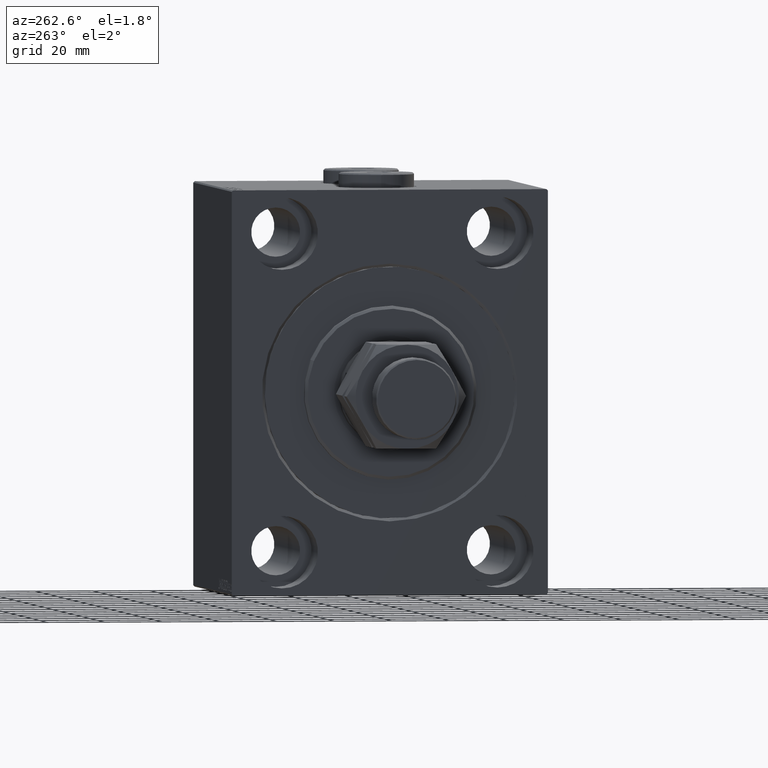
[diagram: clean part render]
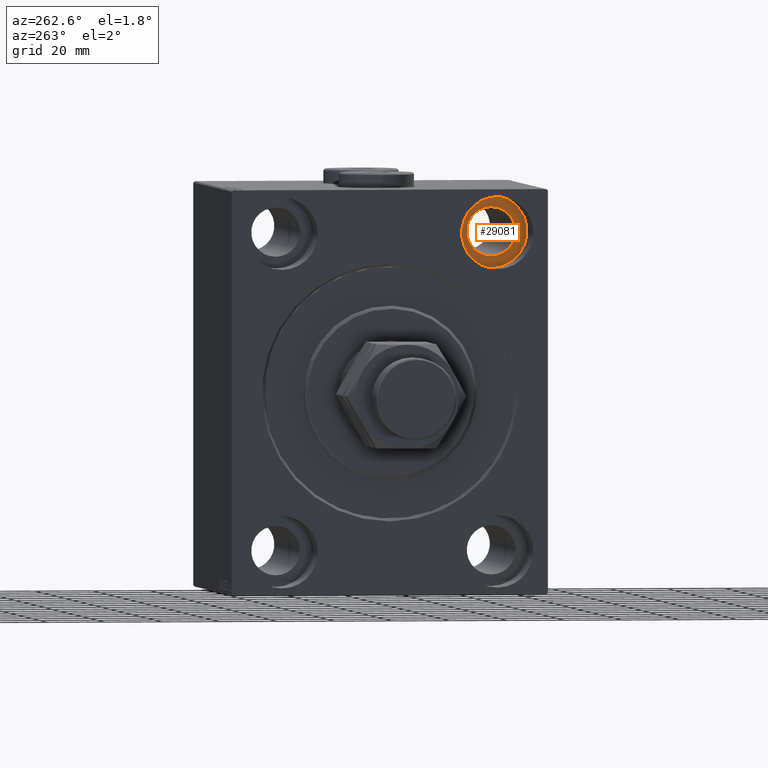
[diagram: same view with one face highlighted and labeled with its STEP entity id]
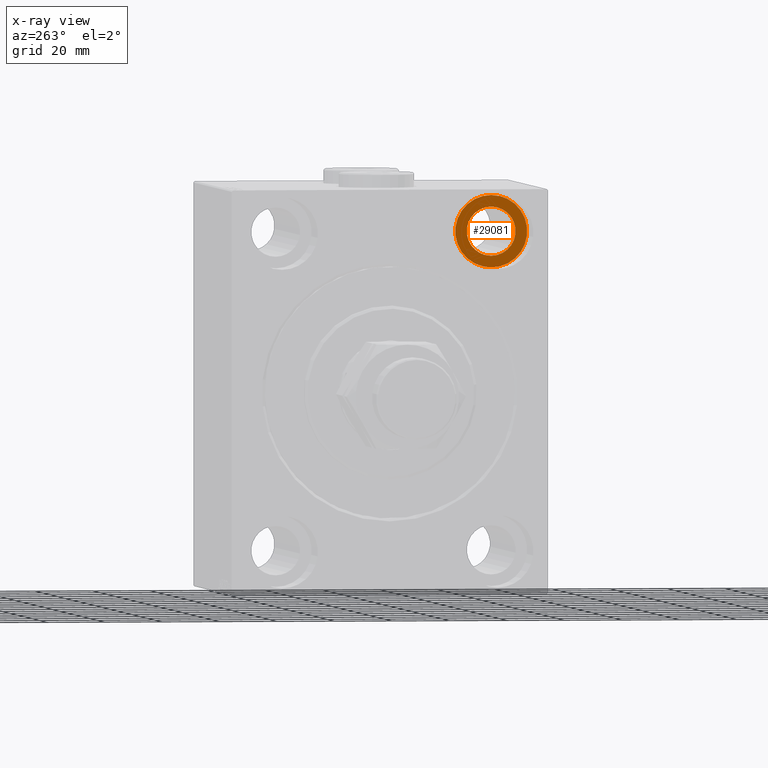
[diagram: x-ray of the same camera — body ghosted, the highlighted face saturated]
A machine part, auxiliary view. The second image highlights one B-rep face of the part: STEP entity #29081.
The next image is the same camera in x-ray: the body ghosted, the highlighted face saturated — about 0% of this face is hidden behind the body in this view.
In plain terms, the highlighted planar face has unit normal (-1, 0, 0).
Its self-contained STEP definition (entity closure, byte-faithful):
#2654 = AXIS2_PLACEMENT_3D ( 'NONE', #11419, #7865, #22315 ) ;
#2939 = DIRECTION ( 'NONE',  ( 0.000000000000000000, 0.000000000000000000, 1.000000000000000000 ) ) ;
#2995 = EDGE_CURVE ( 'NONE', #21313, #36058, #40341, .T. ) ;
#3045 = FACE_BOUND ( 'NONE', #22588, .T. ) ;
#3222 = AXIS2_PLACEMENT_3D ( 'NONE', #39515, #21493, #21722 ) ;
#4137 = EDGE_LOOP ( 'NONE', ( #23447, #12385 ) ) ;
#6356 = ORIENTED_EDGE ( 'NONE', *, *, #2995, .F. ) ;
#7289 = PLANE ( 'NONE',  #3222 ) ;
#7865 = DIRECTION ( 'NONE',  ( -1.000000000000000000, 0.000000000000000000, 0.000000000000000000 ) ) ;
#8644 = CARTESIAN_POINT ( 'NONE',  ( 17.00000000000000000, -37.50000000000000711, 63.50000000000000000 ) ) ;
#11419 = CARTESIAN_POINT ( 'NONE',  ( 17.00000000000000000, -37.50000000000000711, 55.00000000000000711 ) ) ;
#12385 = ORIENTED_EDGE ( 'NONE', *, *, #14114, .T. ) ;
#13013 = DIRECTION ( 'NONE',  ( -1.000000000000000000, 0.000000000000000000, 0.000000000000000000 ) ) ;
#14114 = EDGE_CURVE ( 'NONE', #22387, #33512, #15017, .T. ) ;
#14170 = FACE_OUTER_BOUND ( 'NONE', #4137, .T. ) ;
#14760 = CARTESIAN_POINT ( 'NONE',  ( 17.00000000000000000, -37.50000000000000711, 42.50000000000000711 ) ) ;
#15017 = CIRCLE ( 'NONE', #17296, 12.49999999999999645 ) ;
#17296 = AXIS2_PLACEMENT_3D ( 'NONE', #17384, #20236, #2939 ) ;
#17384 = CARTESIAN_POINT ( 'NONE',  ( 17.00000000000000000, -37.50000000000000711, 55.00000000000000711 ) ) ;
#17849 = CARTESIAN_POINT ( 'NONE',  ( 17.00000000000000000, -37.50000000000000711, 55.00000000000000711 ) ) ;
#20015 = AXIS2_PLACEMENT_3D ( 'NONE', #17849, #46750, #21624 ) ;
#20236 = DIRECTION ( 'NONE',  ( -1.000000000000000000, 0.000000000000000000, 0.000000000000000000 ) ) ;
#21313 = VERTEX_POINT ( 'NONE', #24871 ) ;
#21493 = DIRECTION ( 'NONE',  ( -1.000000000000000000, 0.000000000000000000, 0.000000000000000000 ) ) ;
#21624 = DIRECTION ( 'NONE',  ( 0.000000000000000000, 0.000000000000000000, 1.000000000000000000 ) ) ;
#21722 = DIRECTION ( 'NONE',  ( 0.000000000000000000, 0.000000000000000000, 1.000000000000000000 ) ) ;
#22315 = DIRECTION ( 'NONE',  ( 0.000000000000000000, 0.000000000000000000, 1.000000000000000000 ) ) ;
#22387 = VERTEX_POINT ( 'NONE', #14760 ) ;
#22588 = EDGE_LOOP ( 'NONE', ( #44040, #6356 ) ) ;
#22784 = EDGE_CURVE ( 'NONE', #36058, #21313, #38739, .T. ) ;
#23447 = ORIENTED_EDGE ( 'NONE', *, *, #33789, .T. ) ;
#24839 = DIRECTION ( 'NONE',  ( 0.000000000000000000, 0.000000000000000000, 1.000000000000000000 ) ) ;
#24871 = CARTESIAN_POINT ( 'NONE',  ( 17.00000000000000000, -37.50000000000000711, 46.50000000000001421 ) ) ;
#29081 = ADVANCED_FACE ( 'NONE', ( #3045, #14170 ), #7289, .T. ) ;
#29857 = CIRCLE ( 'NONE', #2654, 12.49999999999999645 ) ;
#33416 = AXIS2_PLACEMENT_3D ( 'NONE', #34121, #13013, #24839 ) ;
#33512 = VERTEX_POINT ( 'NONE', #44637 ) ;
#33789 = EDGE_CURVE ( 'NONE', #33512, #22387, #29857, .T. ) ;
#34121 = CARTESIAN_POINT ( 'NONE',  ( 17.00000000000000000, -37.50000000000000711, 55.00000000000000711 ) ) ;
#36058 = VERTEX_POINT ( 'NONE', #8644 ) ;
#38739 = CIRCLE ( 'NONE', #33416, 8.499999999999992895 ) ;
#39515 = CARTESIAN_POINT ( 'NONE',  ( 17.00000000000000000, 0.000000000000000000, 0.000000000000000000 ) ) ;
#40341 = CIRCLE ( 'NONE', #20015, 8.499999999999992895 ) ;
#44040 = ORIENTED_EDGE ( 'NONE', *, *, #22784, .F. ) ;
#44637 = CARTESIAN_POINT ( 'NONE',  ( 17.00000000000000000, -37.50000000000000711, 67.50000000000000000 ) ) ;
#46750 = DIRECTION ( 'NONE',  ( -1.000000000000000000, 0.000000000000000000, 0.000000000000000000 ) ) ;